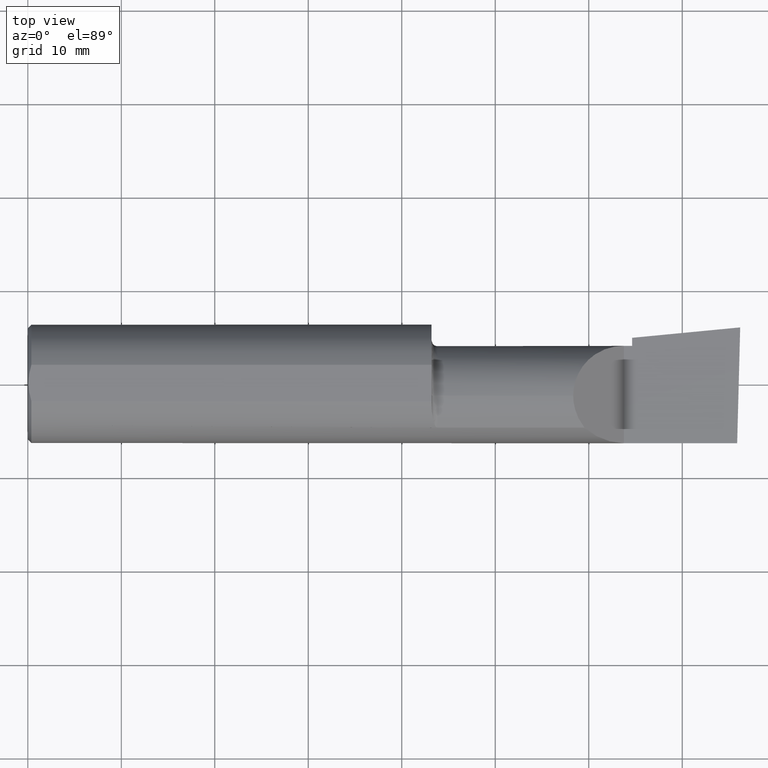
[diagram: clean part render]
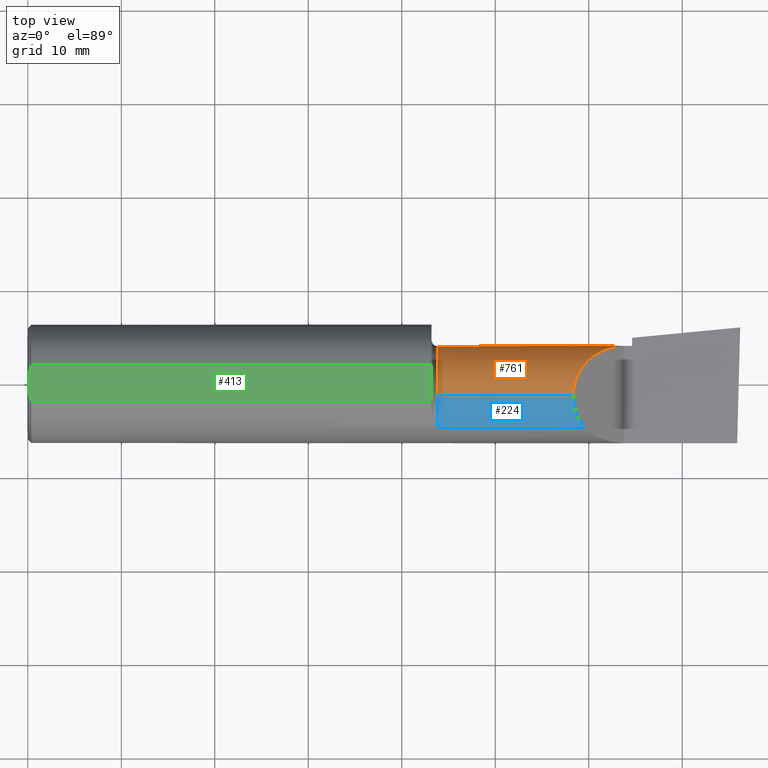
[diagram: same view with three faces highlighted in distinct colors, each labeled with its STEP entity id]
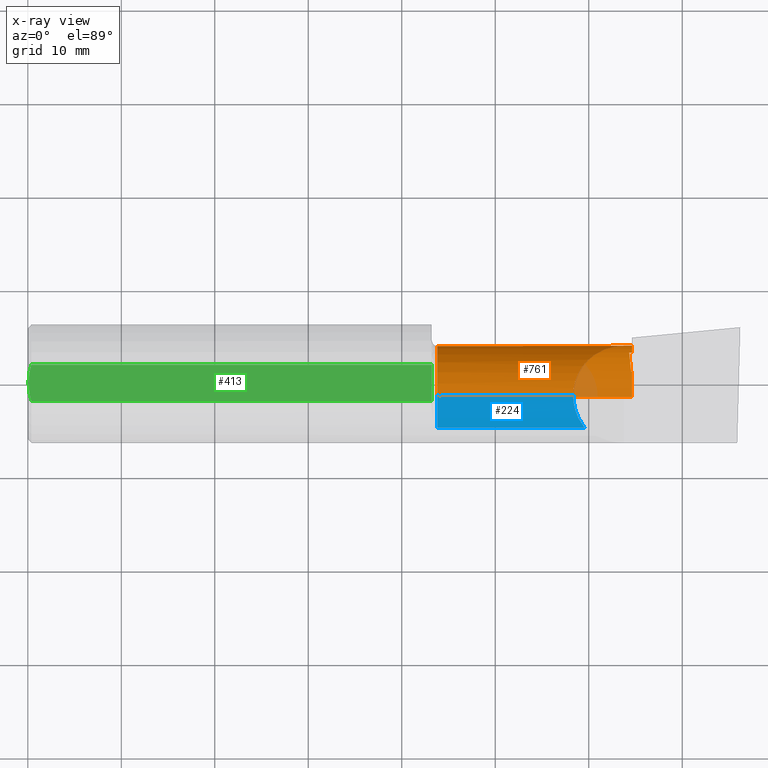
[diagram: x-ray of the same camera — body ghosted, the three highlighted faces saturated]
A machine part, top view with three faces highlighted in distinct colors.
The next image is the same camera in x-ray (body ghosted, the three faces saturated) — at least one of them is partly hidden behind the body in this view.
Their STEP definitions:

[orange] entity #761 — the highlighted cylindrical surface (partial cylindrical patch) has radius 5.414 mm, axis along (-1, -0, -0).
#10 = CARTESIAN_POINT ( 'NONE',  ( 2.545000000000000373, 0.1328281892403428421, -0.1044069278527785527 ) ) ;
#25 = CIRCLE ( 'NONE', #398, 0.2131499999999999784 ) ;
#26 = EDGE_CURVE ( 'NONE', #674, #337, #609, .T. ) ;
#36 = VERTEX_POINT ( 'NONE', #140 ) ;
#49 = CYLINDRICAL_SURFACE ( 'NONE', #58, 0.2131499999999999229 ) ;
#54 = EDGE_LOOP ( 'NONE', ( #619, #560, #160, #297, #430, #370, #651, #326, #414, #389 ) ) ;
#58 = AXIS2_PLACEMENT_3D ( 'NONE', #440, #329, #559 ) ;
#68 = CARTESIAN_POINT ( 'NONE',  ( 2.545000000000000373, 0.1328281892403428421, -0.1044069278527785527 ) ) ;
#74 = DIRECTION ( 'NONE',  ( 0.0000000000000000000, 0.0000000000000000000, 1.000000000000000000 ) ) ;
#94 = CIRCLE ( 'NONE', #290, 0.2131499999999998396 ) ;
#104 = DIRECTION ( 'NONE',  ( -1.000000000000000000, -0.0000000000000000000, -0.0000000000000000000 ) ) ;
#116 = VECTOR ( 'NONE', #200, 39.37007874015748143 ) ;
#121 = DIRECTION ( 'NONE',  ( 1.000000000000000000, 0.0000000000000000000, 0.0000000000000000000 ) ) ;
#125 = CARTESIAN_POINT ( 'NONE',  ( 2.541916792879878706, 0.05627666367902771360, -0.1830073912696824345 ) ) ;
#133 = CARTESIAN_POINT ( 'NONE',  ( 2.540349815208490014, 0.05592018782259779164, -0.1832193089843150713 ) ) ;
#139 = CARTESIAN_POINT ( 'NONE',  ( 1.725000000000000089, -0.05299999999999998462, 0.0000000000000000000 ) ) ;
#140 = CARTESIAN_POINT ( 'NONE',  ( 1.725000000000000089, -0.05299999999999996381, -0.2131499999999998396 ) ) ;
#152 = CARTESIAN_POINT ( 'NONE',  ( 2.385139620819824113, 0.1601499999999999313, 0.1248603791801747576 ) ) ;
#158 =( BOUNDED_CURVE ( )  B_SPLINE_CURVE ( 3, ( #712, #766, #598, #233 ),
 .UNSPECIFIED., .F., .F. ) 
 B_SPLINE_CURVE_WITH_KNOTS ( ( 4, 4 ),
 ( 0.4968328636548186572, 1.034445644973940093 ),
 .UNSPECIFIED. ) 
 CURVE ( )  GEOMETRIC_REPRESENTATION_ITEM ( )  RATIONAL_B_SPLINE_CURVE ( ( 1.000000000000000000, 0.9760590552538845888, 0.9760590552538845888, 1.000000000000000000 ) ) 
 REPRESENTATION_ITEM ( '' )  );
#160 = ORIENTED_EDGE ( 'NONE', *, *, #670, .F. ) ;
#185 = EDGE_CURVE ( 'NONE', #294, #674, #545, .T. ) ;
#186 = CARTESIAN_POINT ( 'NONE',  ( 2.536975816846327447, 0.1338694103809225100, -0.1025372660271277742 ) ) ;
#200 = DIRECTION ( 'NONE',  ( -1.000000000000000000, -0.0000000000000000000, -0.0000000000000000000 ) ) ;
#231 = EDGE_CURVE ( 'NONE', #607, #36, #304, .T. ) ;
#233 = CARTESIAN_POINT ( 'NONE',  ( 2.540349815208490014, 0.05592018782259779164, -0.1832193089843150713 ) ) ;
#274 = CARTESIAN_POINT ( 'NONE',  ( 0.0000000000000000000, -0.05299999999999996381, -0.2131499999999999229 ) ) ;
#286 = CARTESIAN_POINT ( 'NONE',  ( 2.545000000000000373, 0.05698775240724726632, -0.1825804393148457716 ) ) ;
#290 = AXIS2_PLACEMENT_3D ( 'NONE', #139, #506, #74 ) ;
#294 = VERTEX_POINT ( 'NONE', #579 ) ;
#297 = ORIENTED_EDGE ( 'NONE', *, *, #728, .F. ) ;
#304 = LINE ( 'NONE', #274, #116 ) ;
#308 = CARTESIAN_POINT ( 'NONE',  ( 1.878049121262586821E-31, 0.1601499999999999035, 7.172378389328440442E-16 ) ) ;
#315 = DIRECTION ( 'NONE',  ( 0.0000000000000000000, 0.0000000000000000000, 1.000000000000000000 ) ) ;
#317 = CARTESIAN_POINT ( 'NONE',  ( 2.532795049205045501, 0.1343794326159072905, -0.1015966078791039617 ) ) ;
#320 = VERTEX_POINT ( 'NONE', #444 ) ;
#321 = CARTESIAN_POINT ( 'NONE',  ( 2.543466858877806214, 0.05663251955088040995, -0.1827944341085903646 ) ) ;
#326 = ORIENTED_EDGE ( 'NONE', *, *, #359, .F. ) ;
#329 = DIRECTION ( 'NONE',  ( -1.000000000000000000, -0.0000000000000000000, -0.0000000000000000000 ) ) ;
#337 = VERTEX_POINT ( 'NONE', #68 ) ;
#342 = CARTESIAN_POINT ( 'NONE',  ( 2.296849999999997838, 0.07186037918017473825, 0.2131499999999999506 ) ) ;
#359 = EDGE_CURVE ( 'NONE', #377, #337, #682, .T. ) ;
#370 = ORIENTED_EDGE ( 'NONE', *, *, #185, .T. ) ;
#371 = CARTESIAN_POINT ( 'NONE',  ( 2.541044210672213755, 0.1333523194825136093, -0.1034740570574033680 ) ) ;
#373 = DIRECTION ( 'NONE',  ( -1.000000000000000000, -0.0000000000000000000, -0.0000000000000000000 ) ) ;
#375 = CARTESIAN_POINT ( 'NONE',  ( 2.532795049205045501, 0.1343794326159072905, -0.1015966078791039617 ) ) ;
#377 = VERTEX_POINT ( 'NONE', #317 ) ;
#389 = ORIENTED_EDGE ( 'NONE', *, *, #391, .F. ) ;
#391 = EDGE_CURVE ( 'NONE', #562, #582, #762, .T. ) ;
#392 = CARTESIAN_POINT ( 'NONE',  ( 2.545000000000000373, -0.05299999999999998462, 0.0000000000000000000 ) ) ;
#398 = AXIS2_PLACEMENT_3D ( 'NONE', #534, #104, #477 ) ;
#411 =( BOUNDED_CURVE ( )  B_SPLINE_CURVE ( 3, ( #583, #342, #152, #519 ),
 .UNSPECIFIED., .F., .T. ) 
 B_SPLINE_CURVE_WITH_KNOTS ( ( 4, 4 ),
 ( 0.0000000000000000000, 1.570796326794896558 ),
 .UNSPECIFIED. ) 
 CURVE ( )  GEOMETRIC_REPRESENTATION_ITEM ( )  RATIONAL_B_SPLINE_CURVE ( ( 1.000000000000000000, 0.8047378541243649375, 0.8047378541243649375, 1.000000000000000000 ) ) 
 REPRESENTATION_ITEM ( '' )  );
#414 = ORIENTED_EDGE ( 'NONE', *, *, #724, .T. ) ;
#415 = VERTEX_POINT ( 'NONE', #569 ) ;
#430 = ORIENTED_EDGE ( 'NONE', *, *, #615, .T. ) ;
#434 = EDGE_CURVE ( 'NONE', #562, #607, #25, .T. ) ;
#440 = CARTESIAN_POINT ( 'NONE',  ( 0.0000000000000000000, -0.05299999999999998462, 0.0000000000000000000 ) ) ;
#441 = CARTESIAN_POINT ( 'NONE',  ( 2.545000000000000373, 0.05698775240724726632, -0.1825804393148457716 ) ) ;
#444 = CARTESIAN_POINT ( 'NONE',  ( 1.725000000000000089, -0.05299999999999998462, 0.2131499999999998396 ) ) ;
#477 = DIRECTION ( 'NONE',  ( 0.0000000000000000000, 0.0000000000000000000, 1.000000000000000000 ) ) ;
#506 = DIRECTION ( 'NONE',  ( -1.000000000000000000, -0.0000000000000000000, -0.0000000000000000000 ) ) ;
#519 = CARTESIAN_POINT ( 'NONE',  ( 2.510000000000000231, 0.1601499999999999035, 6.000769315822035917E-17 ) ) ;
#522 = CARTESIAN_POINT ( 'NONE',  ( 2.545000000000000373, -0.05299999999999998462, -0.2131499999999999229 ) ) ;
#534 = CARTESIAN_POINT ( 'NONE',  ( 2.545000000000000373, -0.05299999999999998462, 0.0000000000000000000 ) ) ;
#540 = FACE_OUTER_BOUND ( 'NONE', #54, .T. ) ;
#545 = LINE ( 'NONE', #308, #741 ) ;
#552 = AXIS2_PLACEMENT_3D ( 'NONE', #392, #373, #315 ) ;
#555 = VECTOR ( 'NONE', #733, 39.37007874015748143 ) ;
#559 = DIRECTION ( 'NONE',  ( 0.0000000000000000000, 0.0000000000000000000, 1.000000000000000000 ) ) ;
#560 = ORIENTED_EDGE ( 'NONE', *, *, #231, .T. ) ;
#562 = VERTEX_POINT ( 'NONE', #286 ) ;
#569 = CARTESIAN_POINT ( 'NONE',  ( 2.296849999999997838, -0.05299999999999998462, 0.2131499999999999229 ) ) ;
#579 = CARTESIAN_POINT ( 'NONE',  ( 2.510000000000000231, 0.1601499999999999035, 6.000769315822035917E-17 ) ) ;
#582 = VERTEX_POINT ( 'NONE', #640 ) ;
#583 = CARTESIAN_POINT ( 'NONE',  ( 2.296849999999997838, -0.05299999999999998462, 0.2131499999999999229 ) ) ;
#598 = CARTESIAN_POINT ( 'NONE',  ( 2.537149611766881030, 0.08915557130098385186, -0.1634615431086029746 ) ) ;
#607 = VERTEX_POINT ( 'NONE', #522 ) ;
#609 = CIRCLE ( 'NONE', #552, 0.2131499999999999784 ) ;
#615 = EDGE_CURVE ( 'NONE', #415, #294, #411, .T. ) ;
#619 = ORIENTED_EDGE ( 'NONE', *, *, #434, .T. ) ;
#630 = CARTESIAN_POINT ( 'NONE',  ( 2.545000000000000373, 0.1601499999999999868, 7.172378389328444386E-16 ) ) ;
#640 = CARTESIAN_POINT ( 'NONE',  ( 2.540349815208490014, 0.05592018782259779164, -0.1832193089843150713 ) ) ;
#651 = ORIENTED_EDGE ( 'NONE', *, *, #26, .T. ) ;
#653 = CARTESIAN_POINT ( 'NONE',  ( 0.0000000000000000000, -0.05299999999999998462, 0.2131499999999999229 ) ) ;
#670 = EDGE_CURVE ( 'NONE', #320, #36, #94, .T. ) ;
#674 = VERTEX_POINT ( 'NONE', #630 ) ;
#682 =( BOUNDED_CURVE ( )  B_SPLINE_CURVE ( 3, ( #375, #186, #371, #10 ),
 .UNSPECIFIED., .F., .F. ) 
 B_SPLINE_CURVE_WITH_KNOTS ( ( 4, 4 ),
 ( 2.868174658477174788, 2.883234730632701748 ),
 .UNSPECIFIED. ) 
 CURVE ( )  GEOMETRIC_REPRESENTATION_ITEM ( )  RATIONAL_B_SPLINE_CURVE ( ( 1.000000000000000000, 0.9999810996081960335, 0.9999810996081960335, 1.000000000000000000 ) ) 
 REPRESENTATION_ITEM ( '' )  );
#712 = CARTESIAN_POINT ( 'NONE',  ( 2.532795049205045501, 0.1343794326159072905, -0.1015966078791039617 ) ) ;
#713 = LINE ( 'NONE', #653, #555 ) ;
#724 = EDGE_CURVE ( 'NONE', #377, #582, #158, .T. ) ;
#728 = EDGE_CURVE ( 'NONE', #415, #320, #713, .T. ) ;
#733 = DIRECTION ( 'NONE',  ( -1.000000000000000000, -0.0000000000000000000, -0.0000000000000000000 ) ) ;
#741 = VECTOR ( 'NONE', #121, 39.37007874015748143 ) ;
#761 = ADVANCED_FACE ( 'NONE', ( #540 ), #49, .T. ) ;
#762 =( BOUNDED_CURVE ( )  B_SPLINE_CURVE ( 3, ( #441, #321, #125, #133 ),
 .UNSPECIFIED., .F., .F. ) 
 B_SPLINE_CURVE_WITH_KNOTS ( ( 4, 4 ),
 ( 3.399950576546885372, 3.405787439796294169 ),
 .UNSPECIFIED. ) 
 CURVE ( )  GEOMETRIC_REPRESENTATION_ITEM ( )  RATIONAL_B_SPLINE_CURVE ( ( 1.000000000000000000, 0.9999971609209656886, 0.9999971609209656886, 1.000000000000000000 ) ) 
 REPRESENTATION_ITEM ( '' )  );
#766 = CARTESIAN_POINT ( 'NONE',  ( 2.534569588231496695, 0.1159501401920713104, -0.1355866241796521710 ) ) ;

[blue] entity #224 — the highlighted cylindrical surface (partial cylindrical patch) has radius 5.414 mm, axis along (-1, -0, -0).
#11 = VECTOR ( 'NONE', #103, 39.37007874015748143 ) ;
#28 = AXIS2_PLACEMENT_3D ( 'NONE', #250, #667, #314 ) ;
#38 =( BOUNDED_CURVE ( )  B_SPLINE_CURVE ( 3, ( #508, #79, #452, #683 ),
 .UNSPECIFIED., .F., .T. ) 
 B_SPLINE_CURVE_WITH_KNOTS ( ( 4, 4 ),
 ( 5.604538515477337057, 6.283185307179586232 ),
 .UNSPECIFIED. ) 
 CURVE ( )  GEOMETRIC_REPRESENTATION_ITEM ( )  RATIONAL_B_SPLINE_CURVE ( ( 1.000000000000000000, 0.9619867256453012994, 0.9619867256453012994, 1.000000000000000000 ) ) 
 REPRESENTATION_ITEM ( '' )  );
#39 = CARTESIAN_POINT ( 'NONE',  ( 2.135000000000000231, -0.1868028301886796583, 0.1659208399614084672 ) ) ;
#72 = EDGE_LOOP ( 'NONE', ( #380, #543, #426, #234 ) ) ;
#79 = CARTESIAN_POINT ( 'NONE',  ( 2.313215146136122780, -0.1485302233682073147, 0.1967848538638751199 ) ) ;
#95 = CARTESIAN_POINT ( 'NONE',  ( 2.344079160038591070, -0.1868028301886809905, 0.1659208399614071905 ) ) ;
#103 = DIRECTION ( 'NONE',  ( 1.000000000000000000, 0.0000000000000000000, 0.0000000000000000000 ) ) ;
#224 = ADVANCED_FACE ( 'NONE', ( #606 ), #288, .T. ) ;
#234 = ORIENTED_EDGE ( 'NONE', *, *, #482, .T. ) ;
#250 = CARTESIAN_POINT ( 'NONE',  ( 1.725000000000000089, -0.05299999999999998462, 0.0000000000000000000 ) ) ;
#256 = EDGE_CURVE ( 'NONE', #549, #415, #38, .T. ) ;
#288 = CYLINDRICAL_SURFACE ( 'NONE', #617, 0.2131499999999999229 ) ;
#314 = DIRECTION ( 'NONE',  ( 0.0000000000000000000, 0.0000000000000000000, 1.000000000000000000 ) ) ;
#320 = VERTEX_POINT ( 'NONE', #444 ) ;
#330 = DIRECTION ( 'NONE',  ( 0.0000000000000000000, 0.0000000000000000000, 1.000000000000000000 ) ) ;
#333 = DIRECTION ( 'NONE',  ( -1.000000000000000000, -0.0000000000000000000, -0.0000000000000000000 ) ) ;
#354 = EDGE_CURVE ( 'NONE', #512, #320, #532, .T. ) ;
#380 = ORIENTED_EDGE ( 'NONE', *, *, #256, .T. ) ;
#407 = CARTESIAN_POINT ( 'NONE',  ( 1.725000000000000089, -0.1868028301886794917, 0.1659208399614085228 ) ) ;
#415 = VERTEX_POINT ( 'NONE', #569 ) ;
#426 = ORIENTED_EDGE ( 'NONE', *, *, #354, .F. ) ;
#444 = CARTESIAN_POINT ( 'NONE',  ( 1.725000000000000089, -0.05299999999999998462, 0.2131499999999998396 ) ) ;
#452 = CARTESIAN_POINT ( 'NONE',  ( 2.296849999999998282, -0.1021668565906577175, 0.2131499999999999229 ) ) ;
#482 = EDGE_CURVE ( 'NONE', #512, #549, #496, .T. ) ;
#496 = LINE ( 'NONE', #39, #11 ) ;
#508 = CARTESIAN_POINT ( 'NONE',  ( 2.344079160038591070, -0.1868028301886809905, 0.1659208399614071905 ) ) ;
#512 = VERTEX_POINT ( 'NONE', #407 ) ;
#532 = CIRCLE ( 'NONE', #28, 0.2131499999999998396 ) ;
#543 = ORIENTED_EDGE ( 'NONE', *, *, #728, .T. ) ;
#549 = VERTEX_POINT ( 'NONE', #95 ) ;
#555 = VECTOR ( 'NONE', #733, 39.37007874015748143 ) ;
#569 = CARTESIAN_POINT ( 'NONE',  ( 2.296849999999997838, -0.05299999999999998462, 0.2131499999999999229 ) ) ;
#606 = FACE_OUTER_BOUND ( 'NONE', #72, .T. ) ;
#617 = AXIS2_PLACEMENT_3D ( 'NONE', #632, #333, #330 ) ;
#632 = CARTESIAN_POINT ( 'NONE',  ( 0.0000000000000000000, -0.05299999999999998462, 0.0000000000000000000 ) ) ;
#653 = CARTESIAN_POINT ( 'NONE',  ( 0.0000000000000000000, -0.05299999999999998462, 0.2131499999999999229 ) ) ;
#667 = DIRECTION ( 'NONE',  ( -1.000000000000000000, -0.0000000000000000000, -0.0000000000000000000 ) ) ;
#683 = CARTESIAN_POINT ( 'NONE',  ( 2.296849999999997838, -0.05299999999999998462, 0.2131499999999999229 ) ) ;
#713 = LINE ( 'NONE', #653, #555 ) ;
#728 = EDGE_CURVE ( 'NONE', #415, #320, #713, .T. ) ;
#733 = DIRECTION ( 'NONE',  ( -1.000000000000000000, -0.0000000000000000000, -0.0000000000000000000 ) ) ;

[green] entity #413 — the highlighted planar face has unit normal (0, -0, -1).
#13 = CARTESIAN_POINT ( 'NONE',  ( 0.01120982745448973784, -0.06412238594540853320, 0.2378500000000000059 ) ) ;
#50 = EDGE_CURVE ( 'NONE', #625, #61, #278, .T. ) ;
#51 = ORIENTED_EDGE ( 'NONE', *, *, #636, .F. ) ;
#61 = VERTEX_POINT ( 'NONE', #331 ) ;
#85 = DIRECTION ( 'NONE',  ( 0.0000000000000000000, 1.000000000000000000, -1.138839417068644240E-16 ) ) ;
#97 = DIRECTION ( 'NONE',  ( 1.000000000000000000, 0.0000000000000000000, 0.0000000000000000000 ) ) ;
#149 = CARTESIAN_POINT ( 'NONE',  ( 0.004092330037930667214, 0.02606142970188504368, 0.2378500000000000059 ) ) ;
#178 = CARTESIAN_POINT ( 'NONE',  ( 0.003000000000000063380, 0.01299872814765626154, 0.2378499999999999226 ) ) ;
#187 = CARTESIAN_POINT ( 'NONE',  ( 0.003000000000000035624, 4.000211044293764417E-17, 0.2378500000000000059 ) ) ;
#192 = CARTESIAN_POINT ( 'NONE',  ( 0.008199648822849016708, 0.05156445313451110679, 0.2378500000000000059 ) ) ;
#194 = ORIENTED_EDGE ( 'NONE', *, *, #556, .F. ) ;
#195 = CARTESIAN_POINT ( 'NONE',  ( 0.008160184410935168720, -0.05138200716576601240, 0.2378500000000000614 ) ) ;
#196 = CARTESIAN_POINT ( 'NONE',  ( 0.01120763235350242214, 0.06411521680875356677, 0.2378500000000000336 ) ) ;
#205 = CARTESIAN_POINT ( 'NONE',  ( 1.700000000000000178, -0.06494989539702883397, 0.2378500000000000059 ) ) ;
#206 = CARTESIAN_POINT ( 'NONE',  ( 0.01499999999999999771, 0.07650098038587500870, 0.2378499999999999226 ) ) ;
#207 = B_SPLINE_CURVE_WITH_KNOTS ( 'NONE', 3,
 ( #210, #746, #633, #205 ),
 .UNSPECIFIED., .F., .F.,
 ( 4, 4 ),
 ( 0.4999999999997247202, 1.000000000000000000 ),
 .UNSPECIFIED. ) ;
#210 = CARTESIAN_POINT ( 'NONE',  ( 1.700000900032402562, -0.05299999999999998462, 0.2378500000000221548 ) ) ;
#229 = LINE ( 'NONE', #438, #372 ) ;
#262 = CARTESIAN_POINT ( 'NONE',  ( 1.700000900032402562, -0.05299999999999998462, 0.2378500000000221548 ) ) ;
#263 = CARTESIAN_POINT ( 'NONE',  ( 0.003000000000000061211, -0.01298133447204027208, 0.2378500000000000614 ) ) ;
#265 = FACE_OUTER_BOUND ( 'NONE', #701, .T. ) ;
#275 = EDGE_CURVE ( 'NONE', #754, #344, #737, .T. ) ;
#278 = B_SPLINE_CURVE_WITH_KNOTS ( 'NONE', 3,
 ( #187, #178, #149, #192, #196, #206 ),
 .UNSPECIFIED., .F., .F.,
 ( 4, 2, 4 ),
 ( 0.004653101494310745746, 0.005634627094920352519, 0.006616152695529959292 ),
 .UNSPECIFIED. ) ;
#280 = DIRECTION ( 'NONE',  ( -1.000000000000000000, -0.0000000000000000000, -0.0000000000000000000 ) ) ;
#312 = EDGE_CURVE ( 'NONE', #344, #361, #750, .T. ) ;
#331 = CARTESIAN_POINT ( 'NONE',  ( 0.01499999999999999771, 0.07650098038587500870, 0.2378499999999999226 ) ) ;
#336 = CARTESIAN_POINT ( 'NONE',  ( 1.700000000000000178, 0.2998500000000000609, 0.2378499999999999504 ) ) ;
#338 = CARTESIAN_POINT ( 'NONE',  ( 0.003000000000000035624, 4.000211044293764417E-17, 0.2378500000000000059 ) ) ;
#344 = VERTEX_POINT ( 'NONE', #378 ) ;
#347 = VERTEX_POINT ( 'NONE', #719 ) ;
#348 = CARTESIAN_POINT ( 'NONE',  ( 3.000000000000000444, 0.2998500000000000609, 0.2378499999999999504 ) ) ;
#356 = ORIENTED_EDGE ( 'NONE', *, *, #275, .F. ) ;
#361 = VERTEX_POINT ( 'NONE', #495 ) ;
#367 = ORIENTED_EDGE ( 'NONE', *, *, #613, .F. ) ;
#372 = VECTOR ( 'NONE', #97, 39.37007874015748143 ) ;
#378 = CARTESIAN_POINT ( 'NONE',  ( 1.700000000000000178, -0.04105010460297109365, 0.2378500000000000059 ) ) ;
#381 = CARTESIAN_POINT ( 'NONE',  ( 1.700001800035618071, -0.04901601311796496829, 0.2378500024320483464 ) ) ;
#394 = ORIENTED_EDGE ( 'NONE', *, *, #397, .F. ) ;
#397 = EDGE_CURVE ( 'NONE', #347, #625, #694, .T. ) ;
#410 = CARTESIAN_POINT ( 'NONE',  ( 1.700000000000000178, -0.06494989539702883397, 0.2378500000000000059 ) ) ;
#413 = ADVANCED_FACE ( 'NONE', ( #265 ), #539, .F. ) ;
#424 = VECTOR ( 'NONE', #745, 39.37007874015748143 ) ;
#437 = AXIS2_PLACEMENT_3D ( 'NONE', #348, #468, #85 ) ;
#438 = CARTESIAN_POINT ( 'NONE',  ( 0.0000000000000000000, 0.07650098038587500870, 0.2378499999999999226 ) ) ;
#447 = CARTESIAN_POINT ( 'NONE',  ( 1.700000000000000178, -0.07650098038590473493, 0.2378500000000000059 ) ) ;
#463 = CARTESIAN_POINT ( 'NONE',  ( 0.0000000000000000000, -0.07650098038587496707, 0.2378499999999999226 ) ) ;
#465 = VECTOR ( 'NONE', #755, 39.37007874015748143 ) ;
#468 = DIRECTION ( 'NONE',  ( 0.0000000000000000000, -1.138839417068644240E-16, -1.000000000000000000 ) ) ;
#474 = ORIENTED_EDGE ( 'NONE', *, *, #50, .F. ) ;
#481 = ORIENTED_EDGE ( 'NONE', *, *, #764, .F. ) ;
#483 = LINE ( 'NONE', #698, #465 ) ;
#495 = CARTESIAN_POINT ( 'NONE',  ( 1.700000900032402562, -0.05299999999999998462, 0.2378500000000221548 ) ) ;
#503 = VERTEX_POINT ( 'NONE', #410 ) ;
#516 = CARTESIAN_POINT ( 'NONE',  ( 1.700000000000000178, -0.04503596074371312569, 0.2378500000000000059 ) ) ;
#539 = PLANE ( 'NONE',  #437 ) ;
#556 = EDGE_CURVE ( 'NONE', #503, #687, #483, .T. ) ;
#584 = VECTOR ( 'NONE', #280, 39.37007874015748143 ) ;
#603 = LINE ( 'NONE', #463, #584 ) ;
#613 = EDGE_CURVE ( 'NONE', #687, #347, #603, .T. ) ;
#620 = CARTESIAN_POINT ( 'NONE',  ( 1.700000000000000178, 0.07650098038587503646, 0.2378500000000000059 ) ) ;
#623 = CARTESIAN_POINT ( 'NONE',  ( 0.01499999999998188026, -0.07650098038590467941, 0.2378500000000000059 ) ) ;
#625 = VERTEX_POINT ( 'NONE', #338 ) ;
#626 = CARTESIAN_POINT ( 'NONE',  ( 0.004068542164723867871, -0.02585015905295367025, 0.2378500000000000059 ) ) ;
#633 = CARTESIAN_POINT ( 'NONE',  ( 1.700000000000000178, -0.06096394231309198303, 0.2378500000000000059 ) ) ;
#636 = EDGE_CURVE ( 'NONE', #361, #503, #207, .T. ) ;
#675 = CARTESIAN_POINT ( 'NONE',  ( 1.700000000000000178, -0.04105010460297109365, 0.2378500000000000059 ) ) ;
#679 = CARTESIAN_POINT ( 'NONE',  ( 0.003000000000000035624, 4.000211044293764417E-17, 0.2378500000000000059 ) ) ;
#687 = VERTEX_POINT ( 'NONE', #447 ) ;
#694 = B_SPLINE_CURVE_WITH_KNOTS ( 'NONE', 3,
 ( #623, #13, #195, #626, #263, #679 ),
 .UNSPECIFIED., .F., .F.,
 ( 4, 2, 4 ),
 ( 0.002692677063605044066, 0.003672889278957895340, 0.004653101494310745746 ),
 .UNSPECIFIED. ) ;
#698 = CARTESIAN_POINT ( 'NONE',  ( 1.700000000000000178, 0.2998500000000000609, 0.2378499999999999504 ) ) ;
#701 = EDGE_LOOP ( 'NONE', ( #356, #481, #474, #394, #367, #194, #51, #723 ) ) ;
#719 = CARTESIAN_POINT ( 'NONE',  ( 0.01499999999998188026, -0.07650098038590467941, 0.2378500000000000059 ) ) ;
#723 = ORIENTED_EDGE ( 'NONE', *, *, #312, .F. ) ;
#737 = LINE ( 'NONE', #336, #424 ) ;
#745 = DIRECTION ( 'NONE',  ( 0.0000000000000000000, -1.000000000000000000, 1.138839417068644240E-16 ) ) ;
#746 = CARTESIAN_POINT ( 'NONE',  ( 1.700001800093990489, -0.05698398688203939327, 0.2378499975680403167 ) ) ;
#750 = B_SPLINE_CURVE_WITH_KNOTS ( 'NONE', 3,
 ( #675, #516, #381, #262 ),
 .UNSPECIFIED., .F., .F.,
 ( 4, 4 ),
 ( 0.0000000000000000000, 0.4999999999997247202 ),
 .UNSPECIFIED. ) ;
#754 = VERTEX_POINT ( 'NONE', #620 ) ;
#755 = DIRECTION ( 'NONE',  ( 0.0000000000000000000, -1.000000000000000000, 1.138839417068644240E-16 ) ) ;
#764 = EDGE_CURVE ( 'NONE', #61, #754, #229, .T. ) ;